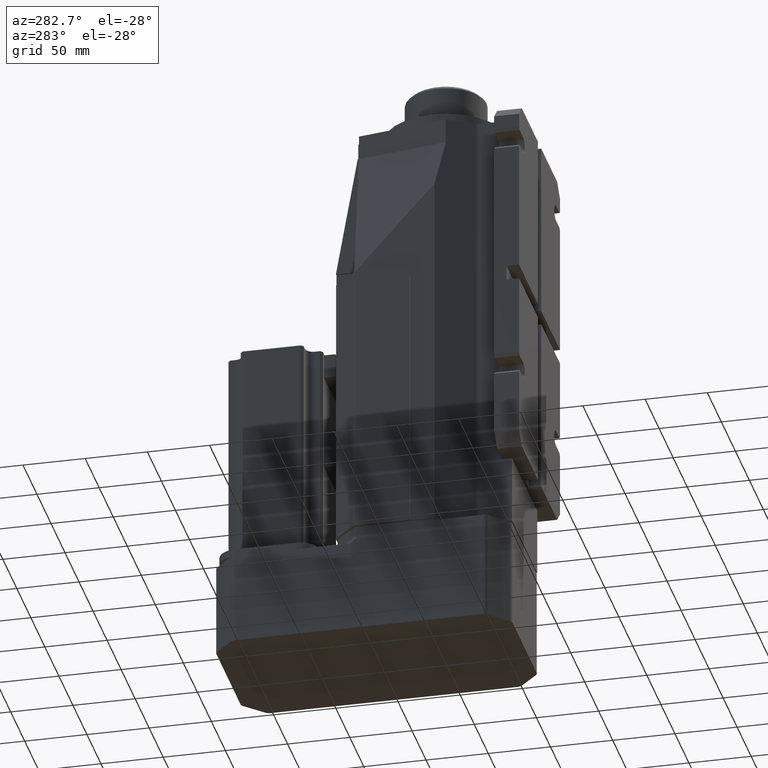
[diagram: clean part render]
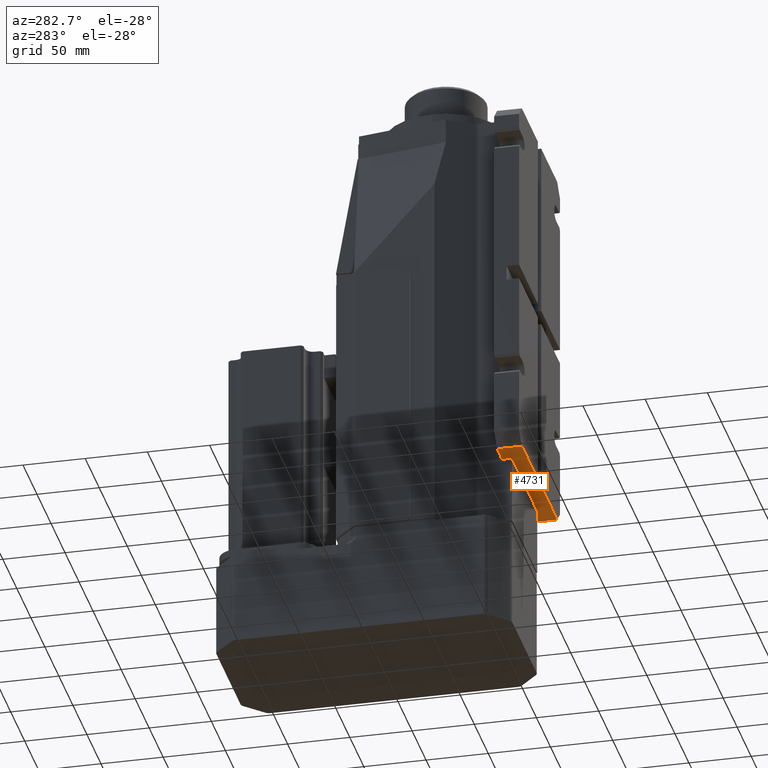
[diagram: same view with one face highlighted and labeled with its STEP entity id]
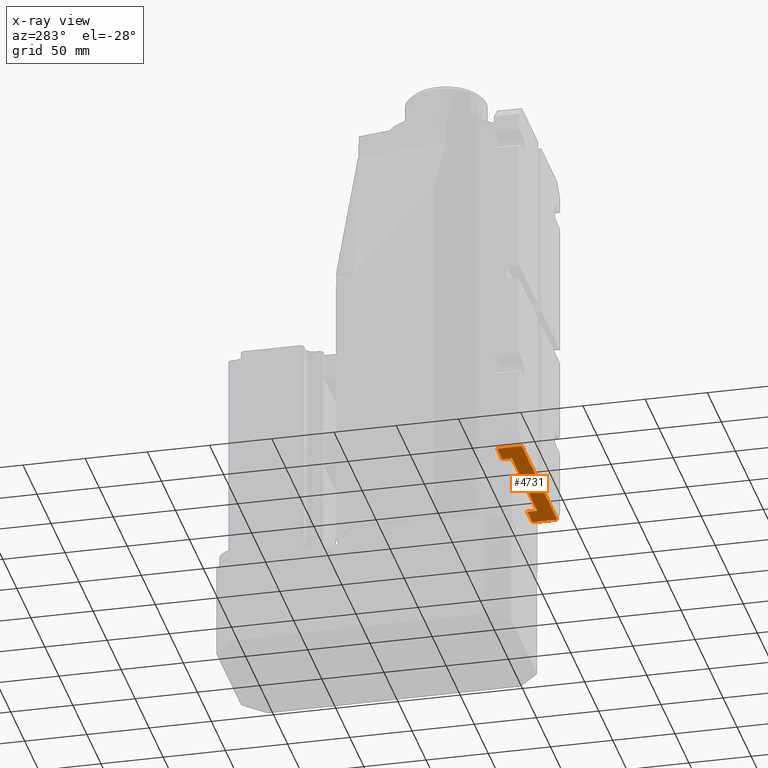
[diagram: x-ray of the same camera — body ghosted, the highlighted face saturated]
A machine part, auxiliary view. The second image highlights one B-rep face of the part: STEP entity #4731.
The next image is the same camera in x-ray: the body ghosted, the highlighted face saturated — about 0% of this face is hidden behind the body in this view.
In plain terms, the highlighted planar face has unit normal (0, 0, 1).
Its self-contained STEP definition (entity closure, byte-faithful):
#14 = CARTESIAN_POINT ( 'NONE',  ( -73.00000000000001400, -75.00000000000001400, 56.99999999999999300 ) ) ;
#69 = EDGE_CURVE ( 'NONE', #92, #133, #6394, .T. ) ;
#74 = EDGE_CURVE ( 'NONE', #137, #135, #6390, .T. ) ;
#79 = VERTEX_POINT ( 'NONE', #6441 ) ;
#82 = VERTEX_POINT ( 'NONE', #6440 ) ;
#85 = EDGE_CURVE ( 'NONE', #82, #79, #6433, .T. ) ;
#87 = VERTEX_POINT ( 'NONE', #6429 ) ;
#92 = VERTEX_POINT ( 'NONE', #6418 ) ;
#94 = EDGE_CURVE ( 'NONE', #79, #92, #6480, .T. ) ;
#133 = VERTEX_POINT ( 'NONE', #6534 ) ;
#135 = VERTEX_POINT ( 'NONE', #6533 ) ;
#137 = VERTEX_POINT ( 'NONE', #6532 ) ;
#192 = EDGE_CURVE ( 'NONE', #135, #4855, #6549, .T. ) ;
#319 = EDGE_CURVE ( 'NONE', #133, #137, #6879, .T. ) ;
#1276 = DIRECTION ( 'NONE',  ( 0.0000000000000000000, -1.000000000000000000, 0.0000000000000000000 ) ) ;
#1277 = VECTOR ( 'NONE', #1276, 1000.000000000000000 ) ;
#1278 = CARTESIAN_POINT ( 'NONE',  ( 44.99999999999998600, -35.00000000000000000, 56.99999999999999300 ) ) ;
#1279 = LINE ( 'NONE', #1278, #1277 ) ;
#1280 = DIRECTION ( 'NONE',  ( -1.000000000000000000, 0.0000000000000000000, 0.0000000000000000000 ) ) ;
#1281 = VECTOR ( 'NONE', #1280, 1000.000000000000000 ) ;
#1282 = CARTESIAN_POINT ( 'NONE',  ( -73.00000000000001400, -63.00000000000000000, 56.99999999999999300 ) ) ;
#1283 = LINE ( 'NONE', #1282, #1281 ) ;
#1328 = CARTESIAN_POINT ( 'NONE',  ( 63.00000000000000000, -75.00000000000001400, 56.99999999999999300 ) ) ;
#1506 = DIRECTION ( 'NONE',  ( 0.0000000000000000000, 1.000000000000000000, 0.0000000000000000000 ) ) ;
#1507 = VECTOR ( 'NONE', #1506, 1000.000000000000000 ) ;
#1508 = CARTESIAN_POINT ( 'NONE',  ( 63.00000000000000000, -63.00000000000000000, 56.99999999999999300 ) ) ;
#1513 = LINE ( 'NONE', #1508, #1507 ) ;
#4444 = EDGE_CURVE ( 'NONE', #87, #4445, #8601, .T. ) ;
#4445 = VERTEX_POINT ( 'NONE', #8597 ) ;
#4680 = VERTEX_POINT ( 'NONE', #8960 ) ;
#4682 = EDGE_CURVE ( 'NONE', #4680, #82, #8959, .T. ) ;
#4688 = ORIENTED_EDGE ( 'NONE', *, *, #192, .F. ) ;
#4731 = ADVANCED_FACE ( 'NONE', ( #8993 ), #8992, .F. ) ;
#4732 = EDGE_LOOP ( 'NONE', ( #4733, #4734, #4735, #4736, #4737, #4738, #4739, #4801, #4803, #4805, #4806, #4688 ) ) ;
#4733 = ORIENTED_EDGE ( 'NONE', *, *, #74, .F. ) ;
#4734 = ORIENTED_EDGE ( 'NONE', *, *, #319, .F. ) ;
#4735 = ORIENTED_EDGE ( 'NONE', *, *, #69, .F. ) ;
#4736 = ORIENTED_EDGE ( 'NONE', *, *, #94, .F. ) ;
#4737 = ORIENTED_EDGE ( 'NONE', *, *, #85, .F. ) ;
#4738 = ORIENTED_EDGE ( 'NONE', *, *, #4682, .F. ) ;
#4739 = ORIENTED_EDGE ( 'NONE', *, *, #4740, .T. ) ;
#4740 = EDGE_CURVE ( 'NONE', #4680, #4741, #8987, .T. ) ;
#4741 = VERTEX_POINT ( 'NONE', #8983 ) ;
#4742 = VERTEX_POINT ( 'NONE', #8982 ) ;
#4801 = ORIENTED_EDGE ( 'NONE', *, *, #4802, .F. ) ;
#4802 = EDGE_CURVE ( 'NONE', #4742, #4741, #1283, .T. ) ;
#4803 = ORIENTED_EDGE ( 'NONE', *, *, #4804, .F. ) ;
#4804 = EDGE_CURVE ( 'NONE', #4445, #4742, #1279, .T. ) ;
#4805 = ORIENTED_EDGE ( 'NONE', *, *, #4444, .F. ) ;
#4806 = ORIENTED_EDGE ( 'NONE', *, *, #4932, .F. ) ;
#4855 = VERTEX_POINT ( 'NONE', #1328 ) ;
#4932 = EDGE_CURVE ( 'NONE', #4855, #87, #1513, .T. ) ;
#6388 = VECTOR ( 'NONE', #6450, 1000.000000000000000 ) ;
#6389 = CARTESIAN_POINT ( 'NONE',  ( 6.000000000000032900, -63.00000000000000000, 56.99999999999999300 ) ) ;
#6390 = LINE ( 'NONE', #6389, #6388 ) ;
#6391 = DIRECTION ( 'NONE',  ( 0.0000000000000000000, 1.000000000000000000, 0.0000000000000000000 ) ) ;
#6392 = VECTOR ( 'NONE', #6391, 1000.000000000000000 ) ;
#6393 = CARTESIAN_POINT ( 'NONE',  ( -5.999999999999950300, -63.00000000000000000, 56.99999999999999300 ) ) ;
#6394 = LINE ( 'NONE', #6393, #6392 ) ;
#6418 = CARTESIAN_POINT ( 'NONE',  ( -5.999999999999951200, -75.00000000000001400, 56.99999999999999300 ) ) ;
#6429 = CARTESIAN_POINT ( 'NONE',  ( 63.00000000000000000, -54.99999999999999300, 56.99999999999999300 ) ) ;
#6430 = DIRECTION ( 'NONE',  ( 0.0000000000000000000, -1.000000000000000000, 0.0000000000000000000 ) ) ;
#6431 = VECTOR ( 'NONE', #6430, 1000.000000000000000 ) ;
#6432 = CARTESIAN_POINT ( 'NONE',  ( -62.99999999999994300, -63.00000000000000000, 56.99999999999999300 ) ) ;
#6433 = LINE ( 'NONE', #6432, #6431 ) ;
#6440 = CARTESIAN_POINT ( 'NONE',  ( -62.99999999999994300, -54.99999999999999300, 56.99999999999999300 ) ) ;
#6441 = CARTESIAN_POINT ( 'NONE',  ( -62.99999999999994300, -75.00000000000001400, 56.99999999999999300 ) ) ;
#6450 = DIRECTION ( 'NONE',  ( 0.0000000000000000000, -1.000000000000000000, 0.0000000000000000000 ) ) ;
#6477 = DIRECTION ( 'NONE',  ( 1.000000000000000000, 0.0000000000000000000, 0.0000000000000000000 ) ) ;
#6478 = VECTOR ( 'NONE', #6477, 1000.000000000000000 ) ;
#6479 = CARTESIAN_POINT ( 'NONE',  ( -73.00000000000001400, -75.00000000000001400, 56.99999999999999300 ) ) ;
#6480 = LINE ( 'NONE', #6479, #6478 ) ;
#6532 = CARTESIAN_POINT ( 'NONE',  ( 6.000000000000036400, -65.00000000000000000, 56.99999999999999300 ) ) ;
#6533 = CARTESIAN_POINT ( 'NONE',  ( 6.000000000000040900, -75.00000000000001400, 56.99999999999999300 ) ) ;
#6534 = CARTESIAN_POINT ( 'NONE',  ( -5.999999999999950300, -65.00000000000000000, 56.99999999999999300 ) ) ;
#6549 = LINE ( 'NONE', #14, #6610 ) ;
#6609 = DIRECTION ( 'NONE',  ( 1.000000000000000000, 0.0000000000000000000, 0.0000000000000000000 ) ) ;
#6610 = VECTOR ( 'NONE', #6609, 1000.000000000000000 ) ;
#6876 = DIRECTION ( 'NONE',  ( 1.000000000000000000, 0.0000000000000000000, 0.0000000000000000000 ) ) ;
#6877 = VECTOR ( 'NONE', #6876, 1000.000000000000000 ) ;
#6878 = CARTESIAN_POINT ( 'NONE',  ( -73.00000000000001400, -65.00000000000000000, 56.99999999999999300 ) ) ;
#6879 = LINE ( 'NONE', #6878, #6877 ) ;
#8597 = CARTESIAN_POINT ( 'NONE',  ( 44.99999999999998600, -54.99999999999999300, 56.99999999999999300 ) ) ;
#8598 = DIRECTION ( 'NONE',  ( -1.000000000000000000, 0.0000000000000000000, 0.0000000000000000000 ) ) ;
#8599 = VECTOR ( 'NONE', #8598, 1000.000000000000000 ) ;
#8600 = CARTESIAN_POINT ( 'NONE',  ( -73.00000000000001400, -54.99999999999999300, 56.99999999999999300 ) ) ;
#8601 = LINE ( 'NONE', #8600, #8599 ) ;
#8956 = DIRECTION ( 'NONE',  ( -1.000000000000000000, 0.0000000000000000000, 0.0000000000000000000 ) ) ;
#8957 = VECTOR ( 'NONE', #8956, 1000.000000000000000 ) ;
#8958 = CARTESIAN_POINT ( 'NONE',  ( -73.00000000000001400, -54.99999999999999300, 56.99999999999999300 ) ) ;
#8959 = LINE ( 'NONE', #8958, #8957 ) ;
#8960 = CARTESIAN_POINT ( 'NONE',  ( -44.99999999999998600, -54.99999999999999300, 56.99999999999999300 ) ) ;
#8982 = CARTESIAN_POINT ( 'NONE',  ( 44.99999999999998600, -63.00000000000000000, 56.99999999999999300 ) ) ;
#8983 = CARTESIAN_POINT ( 'NONE',  ( -44.99999999999998600, -63.00000000000000000, 56.99999999999999300 ) ) ;
#8984 = DIRECTION ( 'NONE',  ( 0.0000000000000000000, -1.000000000000000000, 0.0000000000000000000 ) ) ;
#8985 = VECTOR ( 'NONE', #8984, 1000.000000000000000 ) ;
#8986 = CARTESIAN_POINT ( 'NONE',  ( -44.99999999999998600, -35.00000000000000000, 56.99999999999999300 ) ) ;
#8987 = LINE ( 'NONE', #8986, #8985 ) ;
#8988 = DIRECTION ( 'NONE',  ( 1.000000000000000000, 0.0000000000000000000, 0.0000000000000000000 ) ) ;
#8989 = DIRECTION ( 'NONE',  ( 0.0000000000000000000, 0.0000000000000000000, 1.000000000000000000 ) ) ;
#8990 = CARTESIAN_POINT ( 'NONE',  ( -73.00000000000001400, -63.00000000000000000, 56.99999999999999300 ) ) ;
#8991 = AXIS2_PLACEMENT_3D ( 'NONE', #8990, #8989, #8988 ) ;
#8992 = PLANE ( 'NONE',  #8991 ) ;
#8993 = FACE_OUTER_BOUND ( 'NONE', #4732, .T. ) ;